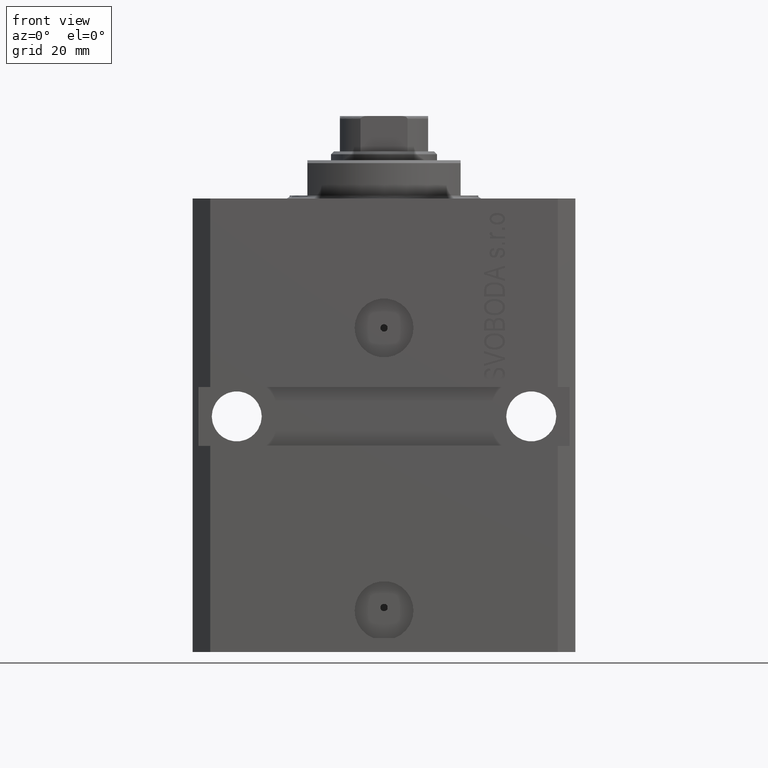
[diagram: clean part render]
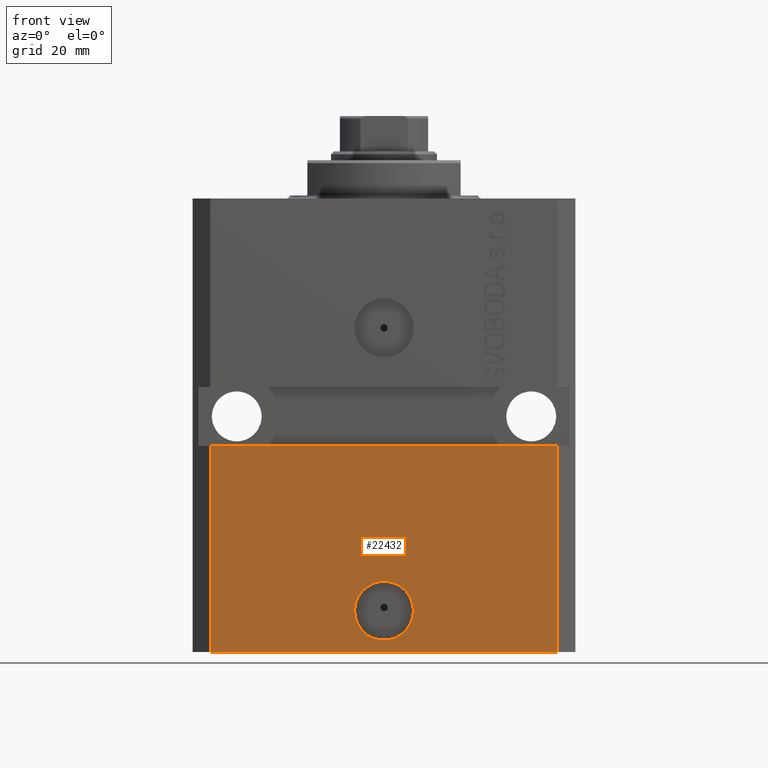
[diagram: same view with one face highlighted and labeled with its STEP entity id]
A machine part, front view. The second image highlights one B-rep face of the part: STEP entity #22432.
In plain terms, the highlighted planar face has unit normal (0, -1, 0).
Its self-contained STEP definition (entity closure, byte-faithful):
#361 = VERTEX_POINT ( 'NONE', #6394 ) ;
#1481 = DIRECTION ( 'NONE',  ( 1.000000000000000000, 1.067522139062765303E-16, 1.067522139062765303E-16 ) ) ;
#2439 = CARTESIAN_POINT ( 'NONE',  ( 29.49999999999650058, -22.49999999999949196, -41.99999999999998579 ) ) ;
#4596 = LINE ( 'NONE', #12684, #28410 ) ;
#4686 = CIRCLE ( 'NONE', #32101, 5.000000000000005329 ) ;
#5722 = EDGE_CURVE ( 'NONE', #45054, #13028, #16172, .T. ) ;
#5950 = DIRECTION ( 'NONE',  ( 0.000000000000000000, 0.000000000000000000, 1.000000000000000000 ) ) ;
#6394 = CARTESIAN_POINT ( 'NONE',  ( 5.000000000000007994, -22.49999999999949551, -69.99999999999998579 ) ) ;
#8156 = ORIENTED_EDGE ( 'NONE', *, *, #5722, .T. ) ;
#8452 = CARTESIAN_POINT ( 'NONE',  ( -29.49999999999650413, -22.49999999999949907, -77.00000000000000000 ) ) ;
#9926 = EDGE_CURVE ( 'NONE', #361, #13159, #4686, .T. ) ;
#11092 = ORIENTED_EDGE ( 'NONE', *, *, #17735, .F. ) ;
#11787 = FACE_OUTER_BOUND ( 'NONE', #14602, .T. ) ;
#12466 = VECTOR ( 'NONE', #5950, 1000.000000000000000 ) ;
#12678 = LINE ( 'NONE', #19616, #34002 ) ;
#12684 = CARTESIAN_POINT ( 'NONE',  ( -32.49999999999650413, -22.49999999999949907, -41.99999999999999289 ) ) ;
#13028 = VERTEX_POINT ( 'NONE', #24124 ) ;
#13159 = VERTEX_POINT ( 'NONE', #26414 ) ;
#14283 = DIRECTION ( 'NONE',  ( 1.000000000000000000, 0.000000000000000000, 0.000000000000000000 ) ) ;
#14602 = EDGE_LOOP ( 'NONE', ( #16022, #11092, #8156, #25671 ) ) ;
#15566 = DIRECTION ( 'NONE',  ( 1.176083712526788232E-16, -1.000000000000000000, 0.000000000000000000 ) ) ;
#16022 = ORIENTED_EDGE ( 'NONE', *, *, #35820, .F. ) ;
#16172 = LINE ( 'NONE', #23324, #16731 ) ;
#16488 = CIRCLE ( 'NONE', #30982, 5.000000000000005329 ) ;
#16731 = VECTOR ( 'NONE', #45259, 1000.000000000000000 ) ;
#17690 = EDGE_CURVE ( 'NONE', #13159, #361, #16488, .T. ) ;
#17735 = EDGE_CURVE ( 'NONE', #45054, #29042, #12678, .T. ) ;
#19616 = CARTESIAN_POINT ( 'NONE',  ( -29.49999999999650413, -22.49999999999949907, -77.00000000000000000 ) ) ;
#19699 = AXIS2_PLACEMENT_3D ( 'NONE', #8452, #22998, #37557 ) ;
#21057 = EDGE_LOOP ( 'NONE', ( #38334, #28706 ) ) ;
#22432 = ADVANCED_FACE ( 'NONE', ( #44462, #11787 ), #26330, .T. ) ;
#22998 = DIRECTION ( 'NONE',  ( 1.176083712526788232E-16, -1.000000000000000000, 0.000000000000000000 ) ) ;
#23324 = CARTESIAN_POINT ( 'NONE',  ( -29.49999999999650413, -22.49999999999949907, -77.00000000000000000 ) ) ;
#23890 = DIRECTION ( 'NONE',  ( 0.000000000000000000, 0.000000000000000000, 1.000000000000000000 ) ) ;
#24124 = CARTESIAN_POINT ( 'NONE',  ( 29.49999999999650413, -22.49999999999949196, -77.00000000000000000 ) ) ;
#25013 = DIRECTION ( 'NONE',  ( 1.176083712526788232E-16, -1.000000000000000000, 0.000000000000000000 ) ) ;
#25391 = VERTEX_POINT ( 'NONE', #2439 ) ;
#25671 = ORIENTED_EDGE ( 'NONE', *, *, #41926, .T. ) ;
#26330 = PLANE ( 'NONE',  #19699 ) ;
#26414 = CARTESIAN_POINT ( 'NONE',  ( -5.000000000000002665, -22.49999999999949551, -69.99999999999998579 ) ) ;
#28384 = LINE ( 'NONE', #35770, #12466 ) ;
#28410 = VECTOR ( 'NONE', #1481, 1000.000000000000000 ) ;
#28706 = ORIENTED_EDGE ( 'NONE', *, *, #17690, .F. ) ;
#29042 = VERTEX_POINT ( 'NONE', #33815 ) ;
#30130 = DIRECTION ( 'NONE',  ( 1.000000000000000000, 0.000000000000000000, 0.000000000000000000 ) ) ;
#30982 = AXIS2_PLACEMENT_3D ( 'NONE', #38215, #15566, #30130 ) ;
#32101 = AXIS2_PLACEMENT_3D ( 'NONE', #32421, #25013, #14283 ) ;
#32421 = CARTESIAN_POINT ( 'NONE',  ( 2.646188353185214061E-15, -22.49999999999949551, -69.99999999999998579 ) ) ;
#33815 = CARTESIAN_POINT ( 'NONE',  ( -29.49999999999650413, -22.49999999999949907, -41.99999999999999289 ) ) ;
#34002 = VECTOR ( 'NONE', #23890, 1000.000000000000000 ) ;
#35770 = CARTESIAN_POINT ( 'NONE',  ( 29.49999999999650413, -22.49999999999949196, -77.00000000000000000 ) ) ;
#35820 = EDGE_CURVE ( 'NONE', #29042, #25391, #4596, .T. ) ;
#37557 = DIRECTION ( 'NONE',  ( 1.000000000000000000, 1.176083712526788232E-16, 0.000000000000000000 ) ) ;
#38215 = CARTESIAN_POINT ( 'NONE',  ( 2.646188353185214061E-15, -22.49999999999949551, -69.99999999999998579 ) ) ;
#38334 = ORIENTED_EDGE ( 'NONE', *, *, #9926, .F. ) ;
#41926 = EDGE_CURVE ( 'NONE', #13028, #25391, #28384, .T. ) ;
#43594 = CARTESIAN_POINT ( 'NONE',  ( -29.49999999999650413, -22.49999999999949907, -77.00000000000000000 ) ) ;
#44462 = FACE_BOUND ( 'NONE', #21057, .T. ) ;
#45054 = VERTEX_POINT ( 'NONE', #43594 ) ;
#45259 = DIRECTION ( 'NONE',  ( 1.000000000000000000, 1.176083712526788232E-16, 0.000000000000000000 ) ) ;